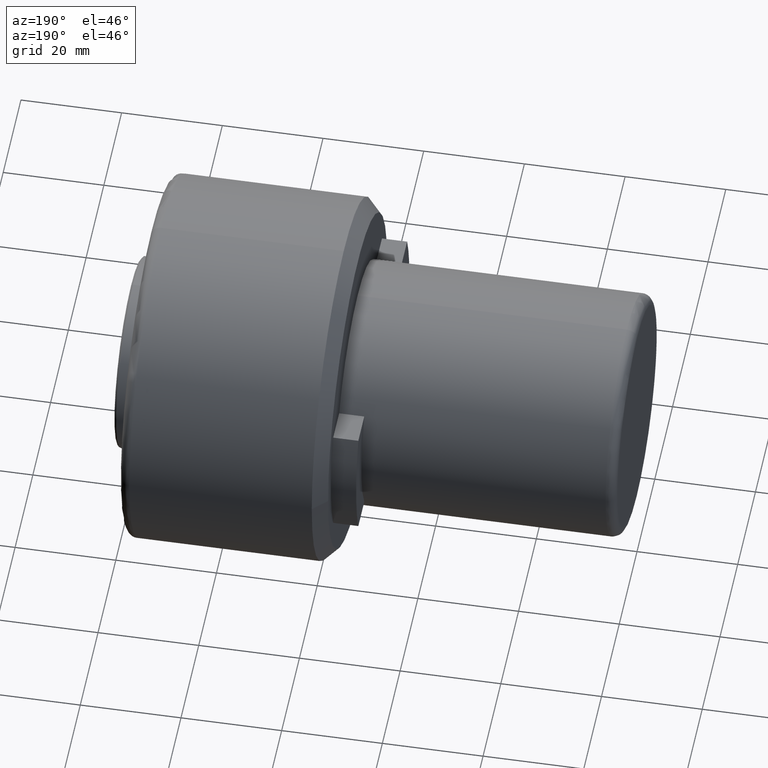
[diagram: clean part render]
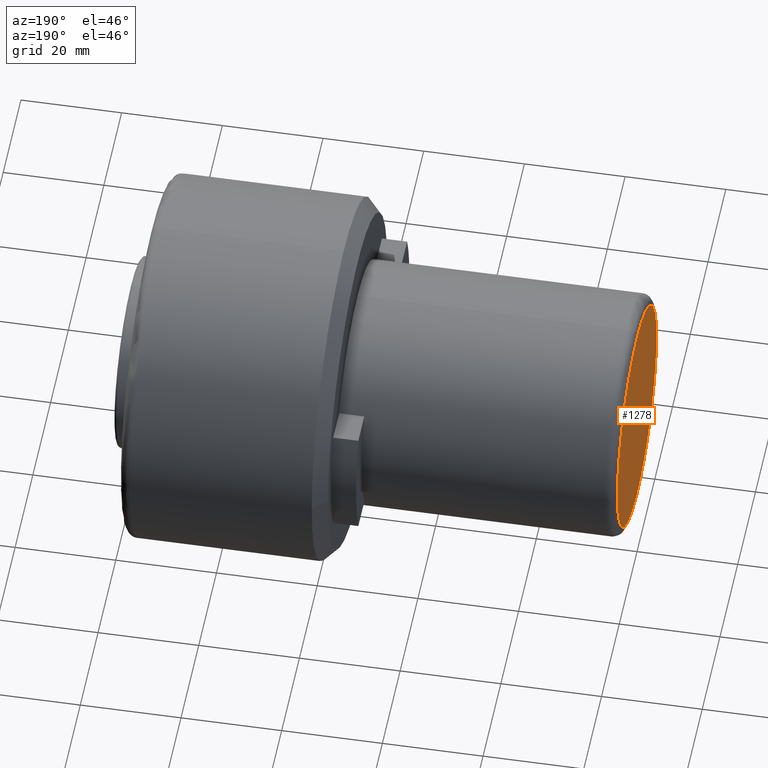
[diagram: same view with one face highlighted and labeled with its STEP entity id]
A machine part, auxiliary view. The second image highlights one B-rep face of the part: STEP entity #1278.
In plain terms, the highlighted planar face has unit normal (-1, 0, 0).
Its self-contained STEP definition (entity closure, byte-faithful):
#42 = EDGE_CURVE ( 'NONE', #121, #1127, #834, .T. ) ;
#70 = DIRECTION ( 'NONE',  ( 0.0000000000000000000, 0.0000000000000000000, 1.000000000000000000 ) ) ;
#74 = DIRECTION ( 'NONE',  ( -1.000000000000000000, 0.0000000000000000000, 0.0000000000000000000 ) ) ;
#102 = EDGE_LOOP ( 'NONE', ( #1280, #815 ) ) ;
#121 = VERTEX_POINT ( 'NONE', #306 ) ;
#216 = DIRECTION ( 'NONE',  ( 0.0000000000000000000, 0.0000000000000000000, 1.000000000000000000 ) ) ;
#306 = CARTESIAN_POINT ( 'NONE',  ( 0.0000000000000000000, 0.0000000000000000000, 21.99999999999999300 ) ) ;
#397 = PLANE ( 'NONE',  #539 ) ;
#404 = CARTESIAN_POINT ( 'NONE',  ( 0.0000000000000000000, 0.0000000000000000000, -7.733975497063264400E-015 ) ) ;
#539 = AXIS2_PLACEMENT_3D ( 'NONE', #715, #74, #821 ) ;
#611 = DIRECTION ( 'NONE',  ( -1.000000000000000000, 0.0000000000000000000, 0.0000000000000000000 ) ) ;
#686 = CIRCLE ( 'NONE', #1252, 22.00000000000000000 ) ;
#712 = DIRECTION ( 'NONE',  ( -1.000000000000000000, 0.0000000000000000000, 0.0000000000000000000 ) ) ;
#715 = CARTESIAN_POINT ( 'NONE',  ( 0.0000000000000000000, 21.60620000000000100, -21.60620000000000100 ) ) ;
#815 = ORIENTED_EDGE ( 'NONE', *, *, #1243, .T. ) ;
#821 = DIRECTION ( 'NONE',  ( 0.0000000000000000000, 0.0000000000000000000, 1.000000000000000000 ) ) ;
#834 = CIRCLE ( 'NONE', #1005, 22.00000000000000000 ) ;
#863 = FACE_OUTER_BOUND ( 'NONE', #102, .T. ) ;
#1005 = AXIS2_PLACEMENT_3D ( 'NONE', #404, #611, #216 ) ;
#1127 = VERTEX_POINT ( 'NONE', #1137 ) ;
#1137 = CARTESIAN_POINT ( 'NONE',  ( 0.0000000000000000000, 2.816687638038912400E-015, -22.00000000000000700 ) ) ;
#1243 = EDGE_CURVE ( 'NONE', #1127, #121, #686, .T. ) ;
#1252 = AXIS2_PLACEMENT_3D ( 'NONE', #1358, #712, #70 ) ;
#1278 = ADVANCED_FACE ( 'NONE', ( #863 ), #397, .T. ) ;
#1280 = ORIENTED_EDGE ( 'NONE', *, *, #42, .T. ) ;
#1358 = CARTESIAN_POINT ( 'NONE',  ( 0.0000000000000000000, 0.0000000000000000000, -7.733975497063264400E-015 ) ) ;